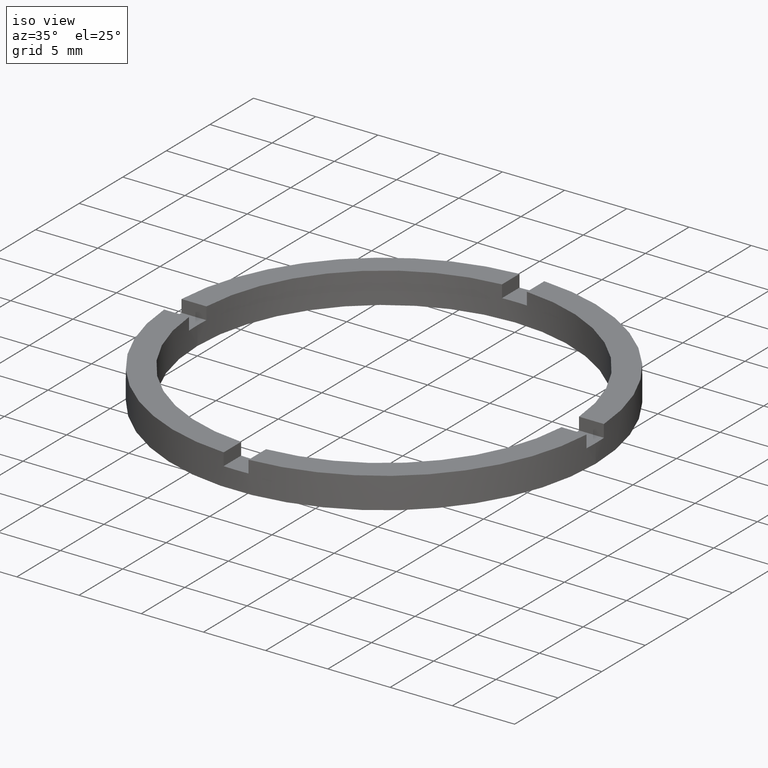
[diagram: clean part render]
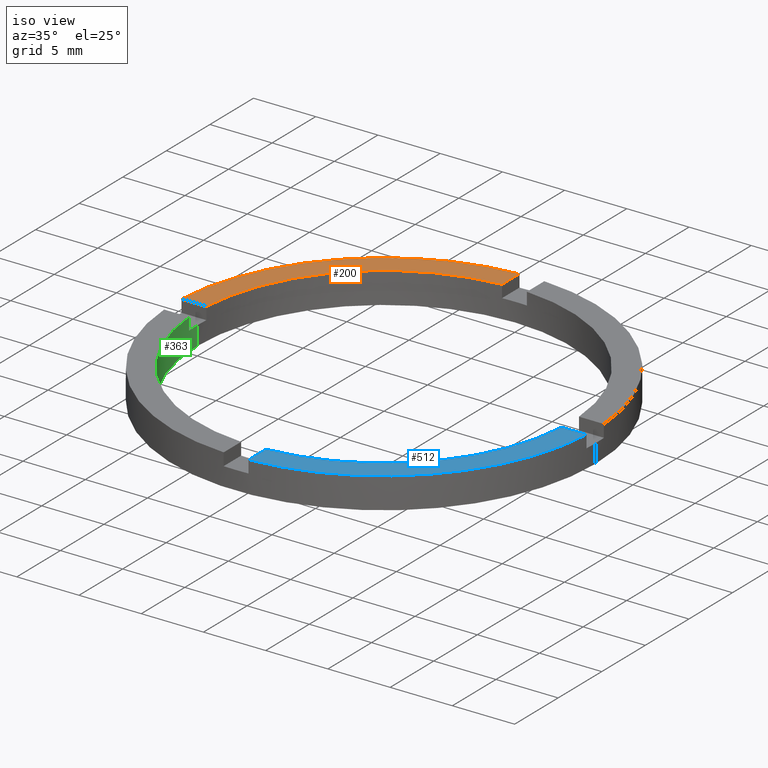
[diagram: same view with three faces highlighted in distinct colors, each labeled with its STEP entity id]
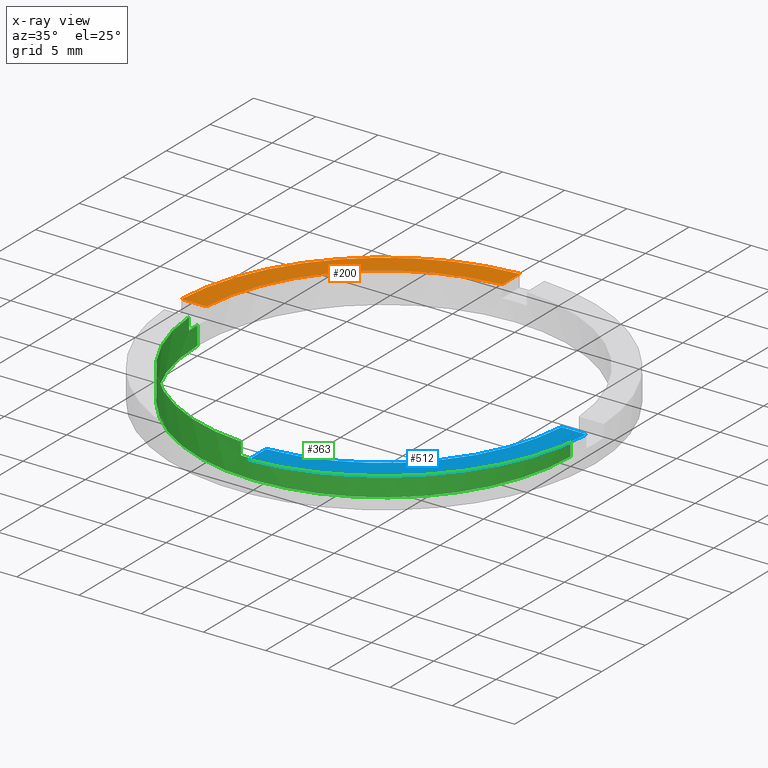
[diagram: x-ray of the same camera — body ghosted, the three highlighted faces saturated]
A machine part, iso view with three faces highlighted in distinct colors.
The next image is the same camera in x-ray (body ghosted, the three faces saturated) — at least one of them is partly hidden behind the body in this view.
Their STEP definitions:

[orange] entity #200 — the highlighted planar face has unit normal (0, 0, 1).
#45 = CARTESIAN_POINT ( 'NONE',  ( -1.000000000000025091, 16.97056274847713908, 2.500000000000000000 ) ) ;
#59 = DIRECTION ( 'NONE',  ( 0.000000000000000000, 0.000000000000000000, 1.000000000000000000 ) ) ;
#87 = VERTEX_POINT ( 'NONE', #623 ) ;
#130 = CARTESIAN_POINT ( 'NONE',  ( -14.96662954709576709, 0.9999999999999767963, 2.500000000000000000 ) ) ;
#148 = VERTEX_POINT ( 'NONE', #45 ) ;
#189 = CIRCLE ( 'NONE', #285, 17.00000000000000000 ) ;
#200 = ADVANCED_FACE ( 'NONE', ( #447 ), #591, .T. ) ;
#203 = CARTESIAN_POINT ( 'NONE',  ( -7.000000000000186517, 0.9999999999999781286, 2.500000000000000000 ) ) ;
#204 = CARTESIAN_POINT ( 'NONE',  ( 0.000000000000000000, 0.000000000000000000, 2.500000000000000000 ) ) ;
#215 = CIRCLE ( 'NONE', #568, 15.00000000000000000 ) ;
#220 = AXIS2_PLACEMENT_3D ( 'NONE', #204, #365, #746 ) ;
#241 = CARTESIAN_POINT ( 'NONE',  ( -1.000000000000025091, 14.96662954709576354, 2.500000000000000000 ) ) ;
#257 = DIRECTION ( 'NONE',  ( -1.000000000000000000, -1.734723475976807341E-16, 0.000000000000000000 ) ) ;
#267 = DIRECTION ( 'NONE',  ( 0.000000000000000000, 0.000000000000000000, 1.000000000000000000 ) ) ;
#278 = ORIENTED_EDGE ( 'NONE', *, *, #301, .T. ) ;
#280 = DIRECTION ( 'NONE',  ( -0.000000000000000000, -1.000000000000000000, -0.000000000000000000 ) ) ;
#282 = VERTEX_POINT ( 'NONE', #241 ) ;
#284 = DIRECTION ( 'NONE',  ( 1.000000000000000000, 0.000000000000000000, 0.000000000000000000 ) ) ;
#285 = AXIS2_PLACEMENT_3D ( 'NONE', #770, #267, #329 ) ;
#301 = EDGE_CURVE ( 'NONE', #148, #87, #189, .T. ) ;
#302 = ORIENTED_EDGE ( 'NONE', *, *, #391, .F. ) ;
#329 = DIRECTION ( 'NONE',  ( 1.000000000000000000, 0.000000000000000000, 0.000000000000000000 ) ) ;
#346 = VERTEX_POINT ( 'NONE', #130 ) ;
#365 = DIRECTION ( 'NONE',  ( 0.000000000000000000, 0.000000000000000000, 1.000000000000000000 ) ) ;
#378 = ORIENTED_EDGE ( 'NONE', *, *, #592, .F. ) ;
#391 = EDGE_CURVE ( 'NONE', #282, #346, #215, .T. ) ;
#416 = VECTOR ( 'NONE', #257, 1000.000000000000000 ) ;
#433 = LINE ( 'NONE', #716, #666 ) ;
#447 = FACE_OUTER_BOUND ( 'NONE', #642, .T. ) ;
#568 = AXIS2_PLACEMENT_3D ( 'NONE', #600, #59, #284 ) ;
#591 = PLANE ( 'NONE',  #220 ) ;
#592 = EDGE_CURVE ( 'NONE', #346, #87, #697, .T. ) ;
#600 = CARTESIAN_POINT ( 'NONE',  ( 0.000000000000000000, 0.000000000000000000, 2.500000000000000000 ) ) ;
#623 = CARTESIAN_POINT ( 'NONE',  ( -16.97056274847714263, 0.9999999999999763522, 2.500000000000000000 ) ) ;
#642 = EDGE_LOOP ( 'NONE', ( #653, #278, #378, #302 ) ) ;
#653 = ORIENTED_EDGE ( 'NONE', *, *, #771, .F. ) ;
#666 = VECTOR ( 'NONE', #280, 1000.000000000000000 ) ;
#697 = LINE ( 'NONE', #203, #416 ) ;
#716 = CARTESIAN_POINT ( 'NONE',  ( -1.000000000000025091, 7.000000000000000888, 2.500000000000000000 ) ) ;
#746 = DIRECTION ( 'NONE',  ( 1.000000000000000000, 0.000000000000000000, -0.000000000000000000 ) ) ;
#770 = CARTESIAN_POINT ( 'NONE',  ( 0.000000000000000000, 0.000000000000000000, 2.500000000000000000 ) ) ;
#771 = EDGE_CURVE ( 'NONE', #148, #282, #433, .T. ) ;

[blue] entity #512 — the highlighted planar face has unit normal (0, 0, 1).
#7 = AXIS2_PLACEMENT_3D ( 'NONE', #656, #173, #465 ) ;
#10 = EDGE_CURVE ( 'NONE', #27, #23, #233, .T. ) ;
#14 = VERTEX_POINT ( 'NONE', #340 ) ;
#20 = VERTEX_POINT ( 'NONE', #601 ) ;
#23 = VERTEX_POINT ( 'NONE', #723 ) ;
#27 = VERTEX_POINT ( 'NONE', #83 ) ;
#69 = DIRECTION ( 'NONE',  ( -1.301042606982605321E-16, 1.000000000000000000, -0.000000000000000000 ) ) ;
#76 = DIRECTION ( 'NONE',  ( 1.000000000000000000, 4.336808689942018352E-17, 0.000000000000000000 ) ) ;
#83 = CARTESIAN_POINT ( 'NONE',  ( 0.9999999999998373523, -14.96662954709577775, 2.500000000000000000 ) ) ;
#85 = DIRECTION ( 'NONE',  ( 1.000000000000000000, 0.000000000000000000, 0.000000000000000000 ) ) ;
#144 = LINE ( 'NONE', #513, #171 ) ;
#156 = FACE_OUTER_BOUND ( 'NONE', #295, .T. ) ;
#163 = CIRCLE ( 'NONE', #7, 17.00000000000000000 ) ;
#171 = VECTOR ( 'NONE', #76, 1000.000000000000000 ) ;
#173 = DIRECTION ( 'NONE',  ( 0.000000000000000000, 0.000000000000000000, 1.000000000000000000 ) ) ;
#183 = LINE ( 'NONE', #734, #455 ) ;
#233 = CIRCLE ( 'NONE', #281, 15.00000000000000000 ) ;
#269 = ORIENTED_EDGE ( 'NONE', *, *, #616, .F. ) ;
#281 = AXIS2_PLACEMENT_3D ( 'NONE', #483, #536, #85 ) ;
#295 = EDGE_LOOP ( 'NONE', ( #269, #384, #494, #652 ) ) ;
#322 = CARTESIAN_POINT ( 'NONE',  ( 0.000000000000000000, 0.000000000000000000, 2.500000000000000000 ) ) ;
#340 = CARTESIAN_POINT ( 'NONE',  ( 0.9999999999998375744, -16.97056274847715329, 2.500000000000000000 ) ) ;
#384 = ORIENTED_EDGE ( 'NONE', *, *, #10, .F. ) ;
#455 = VECTOR ( 'NONE', #69, 1000.000000000000000 ) ;
#456 = EDGE_CURVE ( 'NONE', #14, #27, #183, .T. ) ;
#465 = DIRECTION ( 'NONE',  ( 1.000000000000000000, 0.000000000000000000, 0.000000000000000000 ) ) ;
#483 = CARTESIAN_POINT ( 'NONE',  ( 0.000000000000000000, 0.000000000000000000, 2.500000000000000000 ) ) ;
#494 = ORIENTED_EDGE ( 'NONE', *, *, #456, .F. ) ;
#512 = ADVANCED_FACE ( 'NONE', ( #156 ), #517, .T. ) ;
#513 = CARTESIAN_POINT ( 'NONE',  ( 6.999999999999995559, -1.000000000000159428, 2.500000000000000000 ) ) ;
#517 = PLANE ( 'NONE',  #537 ) ;
#536 = DIRECTION ( 'NONE',  ( 0.000000000000000000, 0.000000000000000000, 1.000000000000000000 ) ) ;
#537 = AXIS2_PLACEMENT_3D ( 'NONE', #322, #686, #564 ) ;
#564 = DIRECTION ( 'NONE',  ( 1.000000000000000000, 0.000000000000000000, -0.000000000000000000 ) ) ;
#601 = CARTESIAN_POINT ( 'NONE',  ( 16.97056274847713198, -1.000000000000158984, 2.500000000000000000 ) ) ;
#616 = EDGE_CURVE ( 'NONE', #23, #20, #144, .T. ) ;
#652 = ORIENTED_EDGE ( 'NONE', *, *, #767, .T. ) ;
#656 = CARTESIAN_POINT ( 'NONE',  ( 0.000000000000000000, 0.000000000000000000, 2.500000000000000000 ) ) ;
#686 = DIRECTION ( 'NONE',  ( 0.000000000000000000, 0.000000000000000000, 1.000000000000000000 ) ) ;
#723 = CARTESIAN_POINT ( 'NONE',  ( 14.96662954709575466, -1.000000000000158984, 2.500000000000000000 ) ) ;
#734 = CARTESIAN_POINT ( 'NONE',  ( 0.9999999999998363531, -7.000000000000181188, 2.500000000000000000 ) ) ;
#767 = EDGE_CURVE ( 'NONE', #14, #20, #163, .T. ) ;

[green] entity #363 — the highlighted cylindrical surface (partial cylindrical patch) has radius 15 mm, axis along (-0, -0, -1).
#10 = EDGE_CURVE ( 'NONE', #27, #23, #233, .T. ) ;
#11 = CARTESIAN_POINT ( 'NONE',  ( 0.000000000000000000, 0.000000000000000000, 1.500000000000000000 ) ) ;
#16 = VERTEX_POINT ( 'NONE', #727 ) ;
#21 = EDGE_CURVE ( 'NONE', #348, #373, #757, .T. ) ;
#23 = VERTEX_POINT ( 'NONE', #723 ) ;
#27 = VERTEX_POINT ( 'NONE', #83 ) ;
#52 = VERTEX_POINT ( 'NONE', #474 ) ;
#61 = DIRECTION ( 'NONE',  ( 1.000000000000000000, 0.000000000000000000, 0.000000000000000000 ) ) ;
#64 = DIRECTION ( 'NONE',  ( 0.000000000000000000, 0.000000000000000000, 1.000000000000000000 ) ) ;
#68 = DIRECTION ( 'NONE',  ( -0.000000000000000000, -0.000000000000000000, -1.000000000000000000 ) ) ;
#77 = DIRECTION ( 'NONE',  ( 1.000000000000000000, 0.000000000000000000, 0.000000000000000000 ) ) ;
#83 = CARTESIAN_POINT ( 'NONE',  ( 0.9999999999998373523, -14.96662954709577775, 2.500000000000000000 ) ) ;
#85 = DIRECTION ( 'NONE',  ( 1.000000000000000000, 0.000000000000000000, 0.000000000000000000 ) ) ;
#86 = CARTESIAN_POINT ( 'NONE',  ( 0.000000000000000000, 0.000000000000000000, 0.000000000000000000 ) ) ;
#110 = DIRECTION ( 'NONE',  ( -0.000000000000000000, -0.000000000000000000, -1.000000000000000000 ) ) ;
#133 = EDGE_CURVE ( 'NONE', #454, #648, #721, .T. ) ;
#142 = CARTESIAN_POINT ( 'NONE',  ( 0.9999999999998373523, -14.96662954709577775, 1.500000000000000000 ) ) ;
#150 = CIRCLE ( 'NONE', #213, 15.00000000000000000 ) ;
#153 = CARTESIAN_POINT ( 'NONE',  ( -14.96662954709576354, -1.000000000000023315, 1.500000000000000000 ) ) ;
#157 = EDGE_CURVE ( 'NONE', #613, #16, #724, .T. ) ;
#160 = VECTOR ( 'NONE', #535, 1000.000000000000000 ) ;
#165 = VERTEX_POINT ( 'NONE', #153 ) ;
#185 = LINE ( 'NONE', #506, #708 ) ;
#191 = CARTESIAN_POINT ( 'NONE',  ( 0.000000000000000000, 0.000000000000000000, 1.500000000000000000 ) ) ;
#198 = CIRCLE ( 'NONE', #677, 15.00000000000000000 ) ;
#202 = FACE_OUTER_BOUND ( 'NONE', #432, .T. ) ;
#206 = CYLINDRICAL_SURFACE ( 'NONE', #239, 15.00000000000000000 ) ;
#213 = AXIS2_PLACEMENT_3D ( 'NONE', #11, #254, #77 ) ;
#218 = LINE ( 'NONE', #539, #743 ) ;
#219 = LINE ( 'NONE', #262, #482 ) ;
#221 = DIRECTION ( 'NONE',  ( 0.000000000000000000, 0.000000000000000000, 1.000000000000000000 ) ) ;
#233 = CIRCLE ( 'NONE', #281, 15.00000000000000000 ) ;
#239 = AXIS2_PLACEMENT_3D ( 'NONE', #647, #394, #477 ) ;
#245 = CARTESIAN_POINT ( 'NONE',  ( 14.96662954709575466, -1.000000000000158984, 2.500000000000000000 ) ) ;
#247 = EDGE_CURVE ( 'NONE', #425, #165, #198, .T. ) ;
#254 = DIRECTION ( 'NONE',  ( -0.000000000000000000, 0.000000000000000000, 1.000000000000000000 ) ) ;
#262 = CARTESIAN_POINT ( 'NONE',  ( -14.96662954709576354, -1.000000000000023315, 2.500000000000000000 ) ) ;
#273 = ORIENTED_EDGE ( 'NONE', *, *, #503, .F. ) ;
#281 = AXIS2_PLACEMENT_3D ( 'NONE', #483, #536, #85 ) ;
#286 = ORIENTED_EDGE ( 'NONE', *, *, #10, .T. ) ;
#288 = ORIENTED_EDGE ( 'NONE', *, *, #339, .F. ) ;
#304 = DIRECTION ( 'NONE',  ( 0.000000000000000000, 0.000000000000000000, 1.000000000000000000 ) ) ;
#310 = VERTEX_POINT ( 'NONE', #142 ) ;
#314 = DIRECTION ( 'NONE',  ( 0.000000000000000000, 0.000000000000000000, 1.000000000000000000 ) ) ;
#324 = CARTESIAN_POINT ( 'NONE',  ( 0.000000000000000000, 0.000000000000000000, 2.500000000000000000 ) ) ;
#330 = DIRECTION ( 'NONE',  ( 1.000000000000000000, 0.000000000000000000, 0.000000000000000000 ) ) ;
#339 = EDGE_CURVE ( 'NONE', #348, #165, #219, .T. ) ;
#341 = AXIS2_PLACEMENT_3D ( 'NONE', #607, #314, #374 ) ;
#348 = VERTEX_POINT ( 'NONE', #619 ) ;
#363 = ADVANCED_FACE ( 'NONE', ( #202 ), #206, .F. ) ;
#367 = ORIENTED_EDGE ( 'NONE', *, *, #21, .T. ) ;
#371 = ORIENTED_EDGE ( 'NONE', *, *, #393, .F. ) ;
#373 = VERTEX_POINT ( 'NONE', #400 ) ;
#374 = DIRECTION ( 'NONE',  ( 1.000000000000000000, 0.000000000000000000, 0.000000000000000000 ) ) ;
#377 = ORIENTED_EDGE ( 'NONE', *, *, #157, .F. ) ;
#388 = DIRECTION ( 'NONE',  ( 1.000000000000000000, 0.000000000000000000, 0.000000000000000000 ) ) ;
#389 = AXIS2_PLACEMENT_3D ( 'NONE', #86, #720, #330 ) ;
#393 = EDGE_CURVE ( 'NONE', #52, #373, #735, .T. ) ;
#394 = DIRECTION ( 'NONE',  ( -0.000000000000000000, -0.000000000000000000, -1.000000000000000000 ) ) ;
#396 = CARTESIAN_POINT ( 'NONE',  ( 15.00000000000000000, 1.836970198721029589E-15, 2.500000000000000000 ) ) ;
#400 = CARTESIAN_POINT ( 'NONE',  ( -1.000000000000162759, -14.96662954709575466, 2.500000000000000000 ) ) ;
#404 = EDGE_CURVE ( 'NONE', #425, #613, #218, .T. ) ;
#407 = CARTESIAN_POINT ( 'NONE',  ( -1.000000000000162759, -14.96662954709575466, 2.500000000000000000 ) ) ;
#412 = ORIENTED_EDGE ( 'NONE', *, *, #404, .F. ) ;
#420 = ORIENTED_EDGE ( 'NONE', *, *, #247, .T. ) ;
#425 = VERTEX_POINT ( 'NONE', #662 ) ;
#429 = LINE ( 'NONE', #396, #160 ) ;
#432 = EDGE_LOOP ( 'NONE', ( #580, #547, #377, #412, #420, #288, #367, #371, #691, #627, #286, #273 ) ) ;
#445 = VECTOR ( 'NONE', #304, 1000.000000000000000 ) ;
#454 = VERTEX_POINT ( 'NONE', #738 ) ;
#474 = CARTESIAN_POINT ( 'NONE',  ( -1.000000000000162759, -14.96662954709575466, 1.500000000000000000 ) ) ;
#477 = DIRECTION ( 'NONE',  ( -1.000000000000000000, 0.000000000000000000, 0.000000000000000000 ) ) ;
#482 = VECTOR ( 'NONE', #573, 1000.000000000000000 ) ;
#483 = CARTESIAN_POINT ( 'NONE',  ( 0.000000000000000000, 0.000000000000000000, 2.500000000000000000 ) ) ;
#487 = DIRECTION ( 'NONE',  ( 0.000000000000000000, 0.000000000000000000, 1.000000000000000000 ) ) ;
#490 = EDGE_CURVE ( 'NONE', #27, #310, #185, .T. ) ;
#503 = EDGE_CURVE ( 'NONE', #454, #23, #704, .T. ) ;
#506 = CARTESIAN_POINT ( 'NONE',  ( 0.9999999999998373523, -14.96662954709577775, 2.500000000000000000 ) ) ;
#535 = DIRECTION ( 'NONE',  ( -0.000000000000000000, -0.000000000000000000, -1.000000000000000000 ) ) ;
#536 = DIRECTION ( 'NONE',  ( 0.000000000000000000, 0.000000000000000000, 1.000000000000000000 ) ) ;
#539 = CARTESIAN_POINT ( 'NONE',  ( -15.00000000000000000, 0.000000000000000000, 2.500000000000000000 ) ) ;
#547 = ORIENTED_EDGE ( 'NONE', *, *, #739, .T. ) ;
#554 = EDGE_CURVE ( 'NONE', #52, #310, #150, .T. ) ;
#573 = DIRECTION ( 'NONE',  ( -0.000000000000000000, -0.000000000000000000, -1.000000000000000000 ) ) ;
#580 = ORIENTED_EDGE ( 'NONE', *, *, #133, .T. ) ;
#607 = CARTESIAN_POINT ( 'NONE',  ( 0.000000000000000000, 0.000000000000000000, 1.500000000000000000 ) ) ;
#613 = VERTEX_POINT ( 'NONE', #698 ) ;
#619 = CARTESIAN_POINT ( 'NONE',  ( -14.96662954709576354, -1.000000000000023315, 2.500000000000000000 ) ) ;
#627 = ORIENTED_EDGE ( 'NONE', *, *, #490, .F. ) ;
#647 = CARTESIAN_POINT ( 'NONE',  ( 0.000000000000000000, 0.000000000000000000, 2.500000000000000000 ) ) ;
#648 = VERTEX_POINT ( 'NONE', #675 ) ;
#662 = CARTESIAN_POINT ( 'NONE',  ( -15.00000000000000000, 0.000000000000000000, 1.500000000000000000 ) ) ;
#675 = CARTESIAN_POINT ( 'NONE',  ( 15.00000000000000000, 1.836970198721029589E-15, 1.500000000000000000 ) ) ;
#677 = AXIS2_PLACEMENT_3D ( 'NONE', #191, #64, #61 ) ;
#691 = ORIENTED_EDGE ( 'NONE', *, *, #554, .T. ) ;
#698 = CARTESIAN_POINT ( 'NONE',  ( -15.00000000000000000, 0.000000000000000000, 0.000000000000000000 ) ) ;
#704 = LINE ( 'NONE', #245, #445 ) ;
#708 = VECTOR ( 'NONE', #68, 1000.000000000000000 ) ;
#720 = DIRECTION ( 'NONE',  ( 0.000000000000000000, 0.000000000000000000, 1.000000000000000000 ) ) ;
#721 = CIRCLE ( 'NONE', #341, 15.00000000000000000 ) ;
#723 = CARTESIAN_POINT ( 'NONE',  ( 14.96662954709575466, -1.000000000000158984, 2.500000000000000000 ) ) ;
#724 = CIRCLE ( 'NONE', #389, 15.00000000000000000 ) ;
#727 = CARTESIAN_POINT ( 'NONE',  ( 15.00000000000000000, 1.836970198721029589E-15, 0.000000000000000000 ) ) ;
#735 = LINE ( 'NONE', #407, #742 ) ;
#738 = CARTESIAN_POINT ( 'NONE',  ( 14.96662954709575466, -1.000000000000158984, 1.500000000000000000 ) ) ;
#739 = EDGE_CURVE ( 'NONE', #648, #16, #429, .T. ) ;
#742 = VECTOR ( 'NONE', #487, 1000.000000000000000 ) ;
#743 = VECTOR ( 'NONE', #110, 1000.000000000000000 ) ;
#757 = CIRCLE ( 'NONE', #762, 15.00000000000000000 ) ;
#762 = AXIS2_PLACEMENT_3D ( 'NONE', #324, #221, #388 ) ;